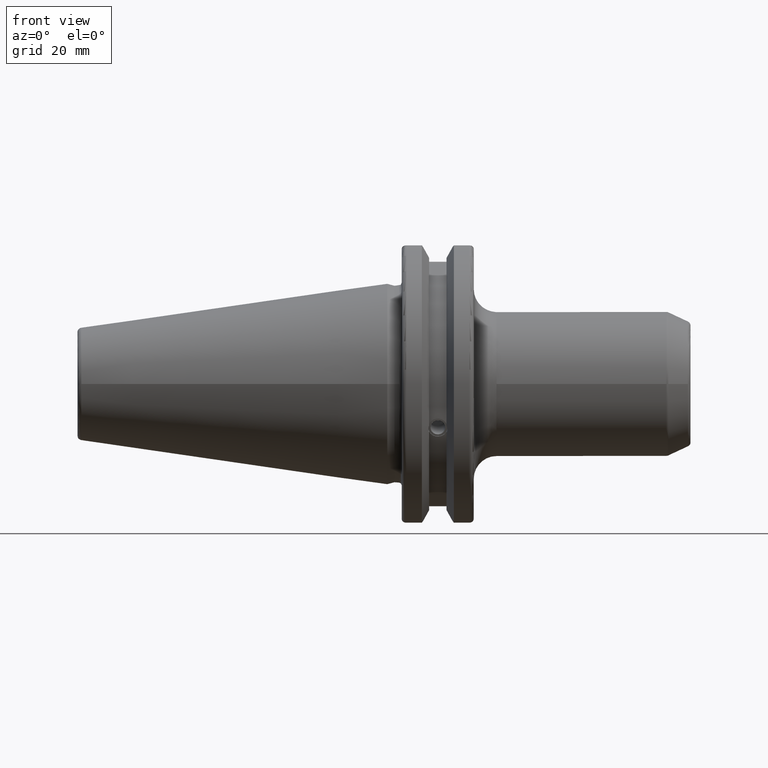
[diagram: clean part render]
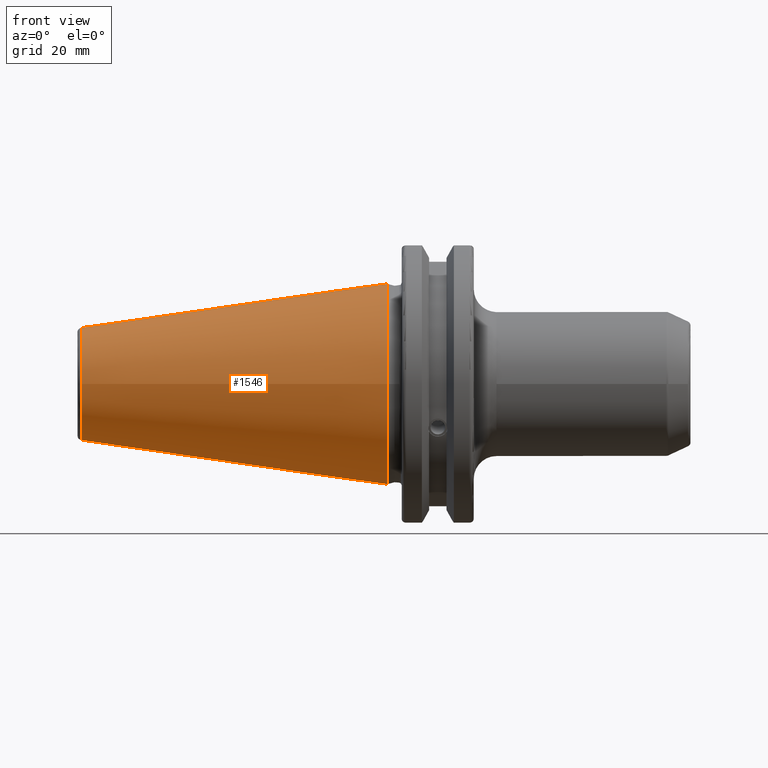
[diagram: same view with one face highlighted and labeled with its STEP entity id]
A machine part, front view. The second image highlights one B-rep face of the part: STEP entity #1546.
In plain terms, the highlighted conical surface has half-angle 8.297 deg.
Its self-contained STEP definition (entity closure, byte-faithful):
#56=CONICAL_SURFACE('',#1735,17.2484375,0.144812498238939);
#168=LINE('',#3009,#260);
#260=VECTOR('',#2128,17.2484375);
#414=FACE_OUTER_BOUND('',#513,.T.);
#513=EDGE_LOOP('',(#1348,#1349,#1350,#1351,#1352));
#602=CIRCLE('',#1729,12.3966635780937);
#603=CIRCLE('',#1730,12.3966635780937);
#607=CIRCLE('',#1736,22.225);
#760=VERTEX_POINT('',#2996);
#761=VERTEX_POINT('',#2997);
#764=VERTEX_POINT('',#3007);
#971=EDGE_CURVE('',#760,#761,#602,.T.);
#972=EDGE_CURVE('',#761,#760,#603,.T.);
#976=EDGE_CURVE('',#764,#764,#607,.T.);
#977=EDGE_CURVE('',#764,#761,#168,.T.);
#1348=ORIENTED_EDGE('',*,*,#976,.F.);
#1349=ORIENTED_EDGE('',*,*,#977,.T.);
#1350=ORIENTED_EDGE('',*,*,#971,.F.);
#1351=ORIENTED_EDGE('',*,*,#972,.F.);
#1352=ORIENTED_EDGE('',*,*,#977,.F.);
#1546=ADVANCED_FACE('',(#414),#56,.T.);
#1729=AXIS2_PLACEMENT_3D('',#2998,#2112,#2113);
#1730=AXIS2_PLACEMENT_3D('',#2999,#2114,#2115);
#1735=AXIS2_PLACEMENT_3D('',#3006,#2124,#2125);
#1736=AXIS2_PLACEMENT_3D('',#3008,#2126,#2127);
#2112=DIRECTION('center_axis',(-1.,0.,0.));
#2113=DIRECTION('ref_axis',(0.,-1.,3.06161699786838E-17));
#2114=DIRECTION('center_axis',(-1.,0.,0.));
#2115=DIRECTION('ref_axis',(0.,-1.,3.06161699786838E-17));
#2124=DIRECTION('center_axis',(1.,0.,0.));
#2125=DIRECTION('ref_axis',(0.,1.,0.));
#2126=DIRECTION('center_axis',(1.,0.,0.));
#2127=DIRECTION('ref_axis',(0.,0.,-1.));
#2128=DIRECTION('',(-0.989532981063282,0.144306893071729,1.76724974695192E-17));
#2996=CARTESIAN_POINT('',(-67.3943068930717,-1.5181534371019E-15,12.3966635780937));
#2997=CARTESIAN_POINT('',(-67.3943068930718,-12.3966635780937,-1.5181534371019E-15));
#2998=CARTESIAN_POINT('Origin',(-67.3943068930717,0.,-1.89769179637738E-15));
#2999=CARTESIAN_POINT('Origin',(-67.3943068930717,0.,-1.89769179637738E-15));
#3006=CARTESIAN_POINT('Origin',(-34.125,0.,0.));
#3007=CARTESIAN_POINT('',(0.,-22.225,-2.72177751110499E-15));
#3008=CARTESIAN_POINT('Origin',(0.,0.,0.));
#3009=CARTESIAN_POINT('',(-34.125,-17.2484375,-2.11232437746682E-15));